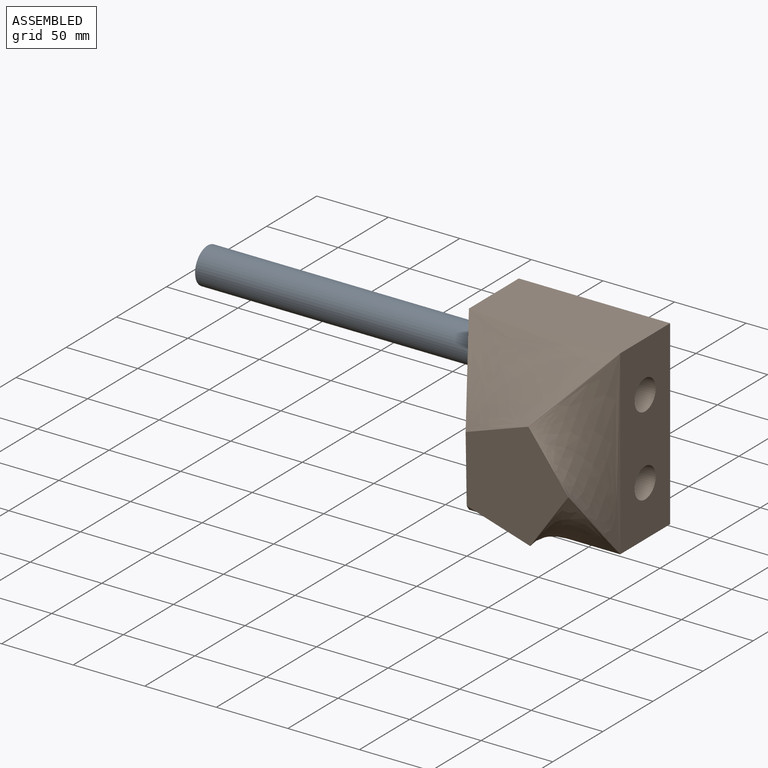
[diagram: assembled view]
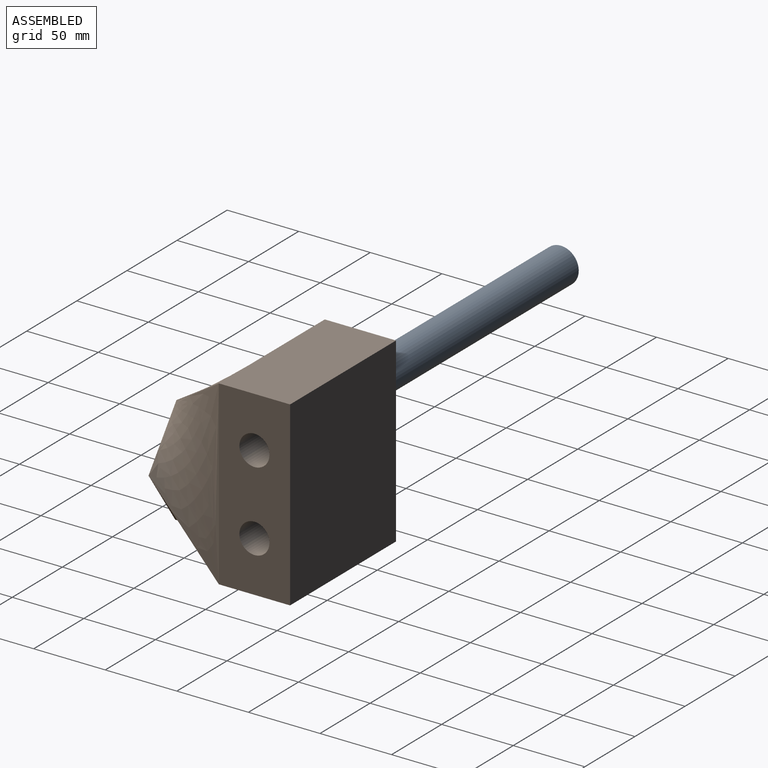
[diagram: assembled view, second angle]
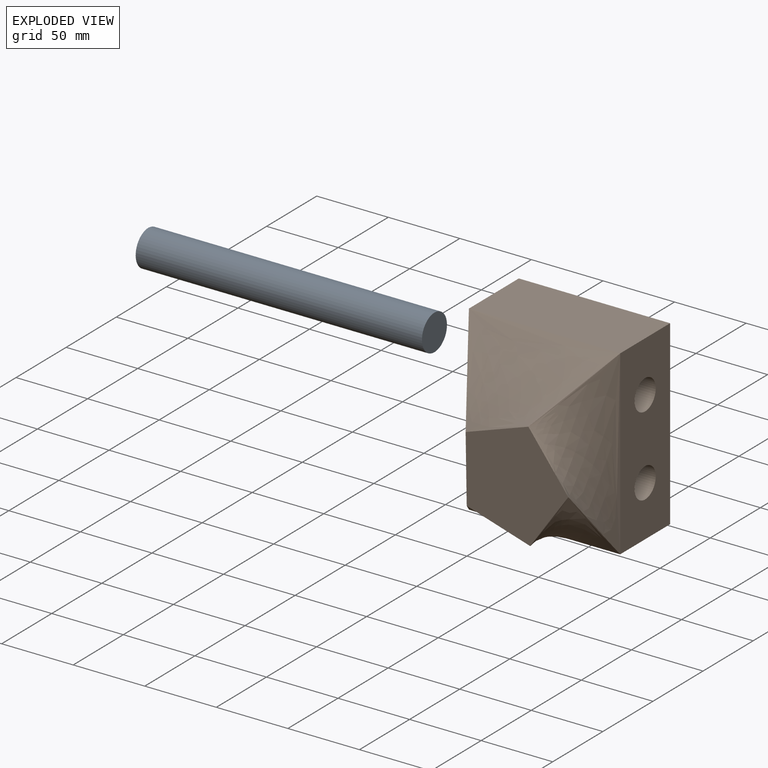
[diagram: exploded view]
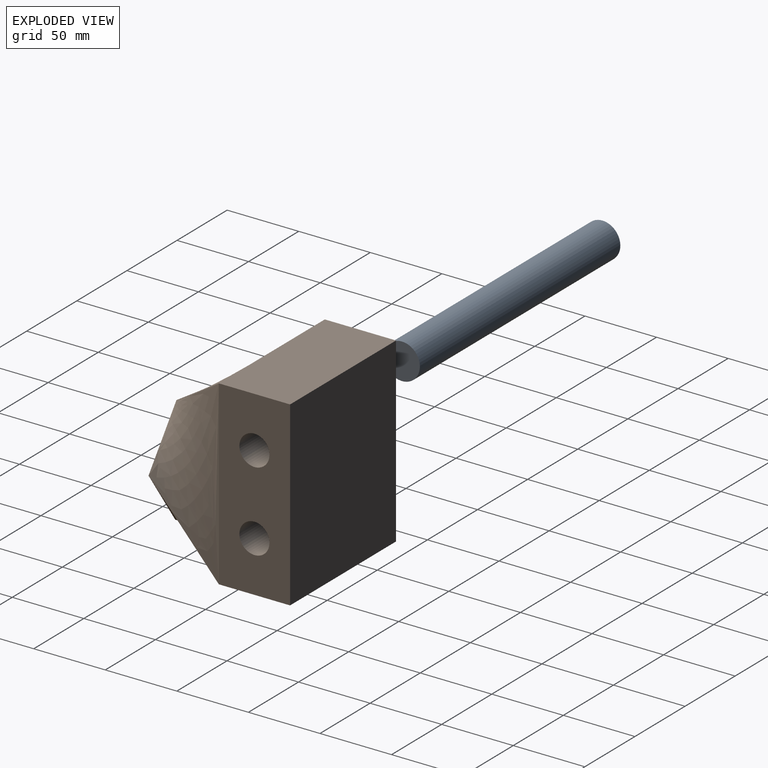
[diagram: exploded view, second angle]
ASSEMBLY  parts=2 mates=2
PART A: 3 faces, bbox 200x25x25 mm
  f0: cylinder r=12.5mm len=200mm, axis (-1,0,0), area 15708mm2, adj f1,f2
  f1: plane 25x25mm, normal (1,0,0), area 490.9mm2, adj f0
  f2: plane 25x25mm, normal (-1,0,0), area 490.9mm2, adj f0
PART B: 13 faces, bbox 126.9x105.7x99.8 mm
  f0: plane 126.89x49.78mm, normal (0,1,0), area 5621.1mm2, adj f1,f3,f4,f5,f6,f12
  f1: plane 105.72x49.78mm, normal (-1,0,0), area 5263.3mm2, adj f0,f2,f4,f8,f9
  f2: plane 126.89x49.78mm, normal (0,-1,0), area 5621.1mm2, adj f1,f3,f4,f5,f6,f10
  f3: plane 105.72x49.78mm, normal (1,0,0), area 5263.3mm2, adj f0,f2,f4,f11
  f4: plane 126.89x105.72mm, normal (0,0,-1), area 13415.5mm2, adj f0,f1,f2,f3
  f5: cylinder r=10.53mm len=105.72mm, axis (0,1,0), area 6992.3mm2, adj f0,f2
  f6: cylinder r=10.53mm len=105.72mm, axis (0,1,0), area 6992.3mm2, adj f0,f2
  f7: plane 75.03x71.74mm, normal (0,0,1), area 3700.7mm2, adj f8,f9,f10,f11,f12
  f8: bspline ~77.81x50mm, area 2814.4mm2, adj f1,f7,f9,f12
  f9: bspline ~54.77x52.86mm, area 2661.5mm2, adj f1,f7,f8,f10
  f10: bspline ~126.89x50mm, area 4477.9mm2, adj f2,f7,f9,f11
  f11: bspline ~105.72x50.1mm, area 4958.7mm2, adj f3,f7,f10,f12
  f12: bspline ~126.89x50mm, area 5192.6mm2, adj f0,f7,f8,f11
PLACE A rot(axis=(1,0,0),23.5deg) t=(-128.79,18.06,-21.75)mm
PLACE B rot(axis=(0.58,-0.58,0.58),120deg) t=(124.07,42.95,-49.54)mm fixed
MATE cylindrical A.f0 <-> B.f5  axis (-1,0,0) through (-28.79,18.06,-21.75)mm
MATE planar A.f0 <-> B.f0  axis (1,0,0) through (71.21,18.06,-21.75)mm
